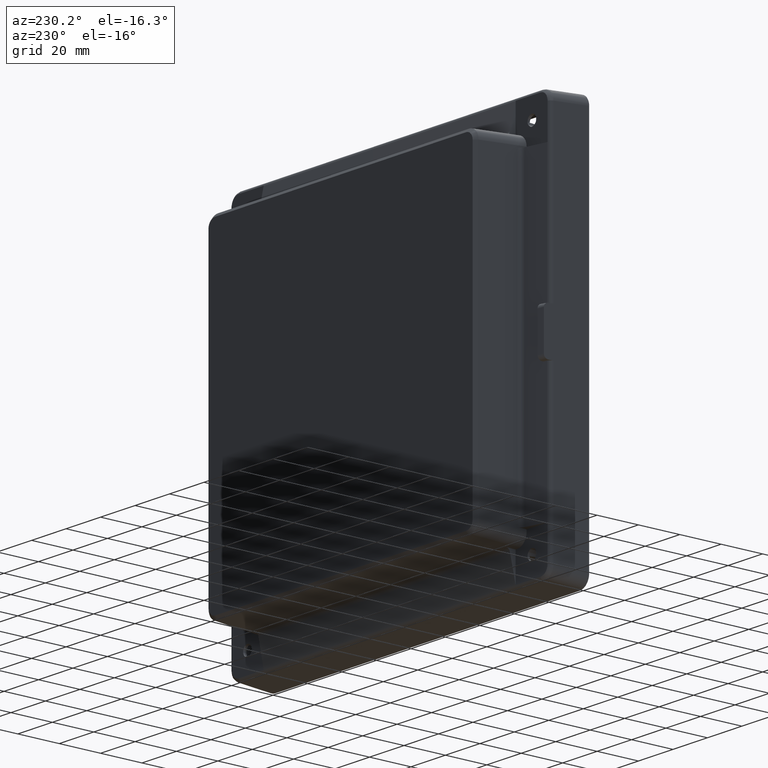
[diagram: clean part render]
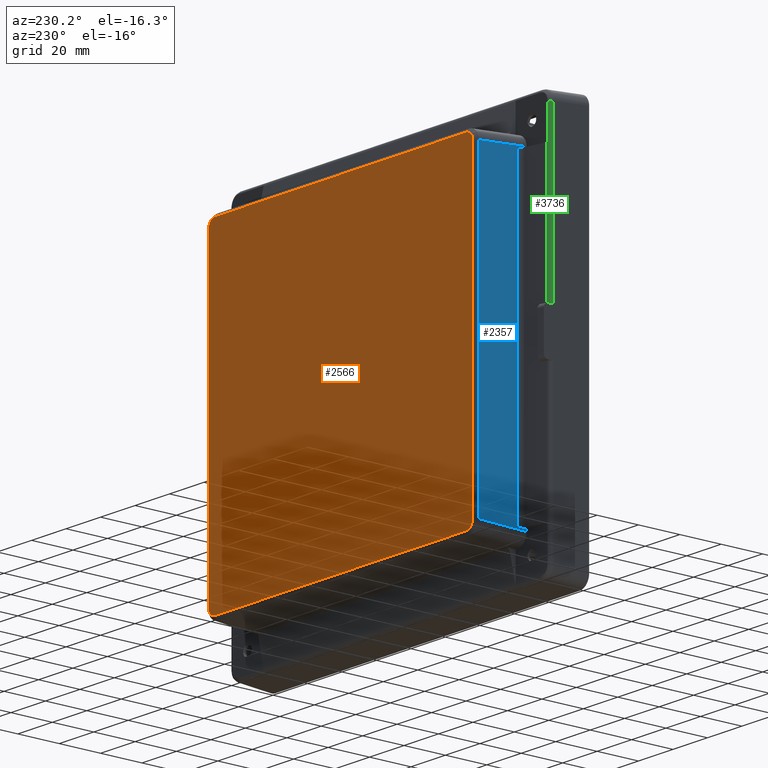
[diagram: same view with three faces highlighted in distinct colors, each labeled with its STEP entity id]
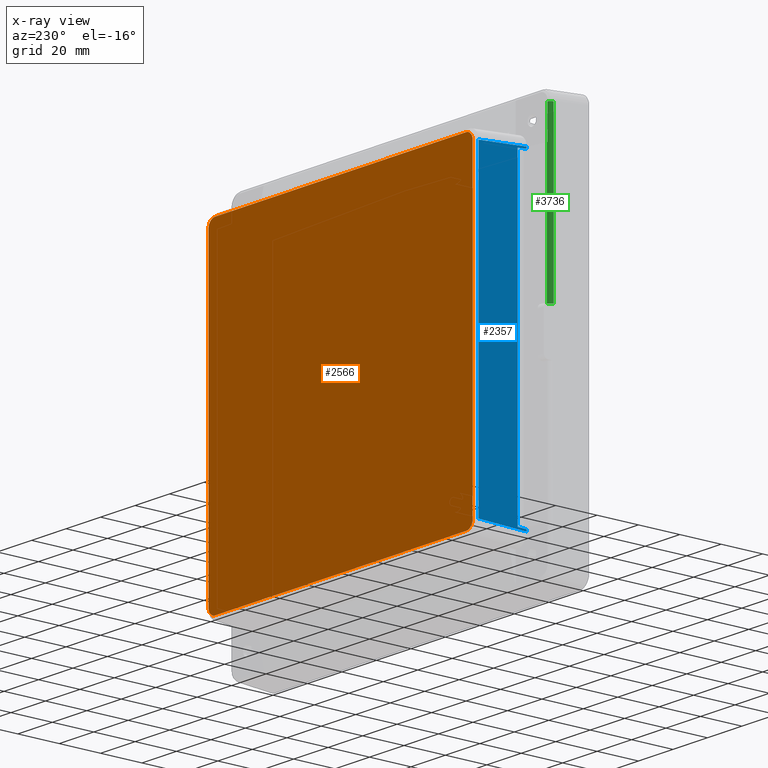
[diagram: x-ray of the same camera — body ghosted, the three highlighted faces saturated]
A machine part, auxiliary view with three faces highlighted in distinct colors.
The next image is the same camera in x-ray (body ghosted, the three faces saturated) — at least one of them is partly hidden behind the body in this view.
Their STEP definitions:

[orange] entity #2566 — the highlighted planar face has unit normal (0, 1, 0).
#1 = ORIENTED_EDGE ( 'NONE', *, *, #5078, .T. ) ;
#137 = CARTESIAN_POINT ( 'NONE',  ( -72.80417699759085800, 34.00000000000000000, 77.13300375027627400 ) ) ;
#355 = CARTESIAN_POINT ( 'NONE',  ( 76.53733778780858200, 34.00000000000000700, 74.29403919893644600 ) ) ;
#371 = CARTESIAN_POINT ( 'NONE',  ( 76.51245079106898600, 34.00000000000000700, -74.29038912306559400 ) ) ;
#379 = CARTESIAN_POINT ( 'NONE',  ( -73.30579338919908100, 34.00000000000000000, 77.13494238622121200 ) ) ;
#419 = VERTEX_POINT ( 'NONE', #3498 ) ;
#460 = B_SPLINE_CURVE_WITH_KNOTS ( 'NONE', 3,
 ( #1911, #6359, #5701, #5040, #4377, #3734, #3083, #2422, #1755, #1069, #379, #6207 ),
 .UNSPECIFIED., .F., .F.,
 ( 4, 2, 2, 2, 2, 4 ),
 ( 0.0000000000000000000, 0.1249999999999990600, 0.2499999999999981100, 0.4999999999999987800, 0.7499999999999994400, 1.000000000000000000 ),
 .UNSPECIFIED. ) ;
#656 = CARTESIAN_POINT ( 'NONE',  ( -74.03245852206094900, 34.00000000000000000, -76.93827085666104900 ) ) ;
#699 = CARTESIAN_POINT ( 'NONE',  ( -76.63300375027628800, 34.00000000000000000, 73.30417699759087200 ) ) ;
#910 = EDGE_CURVE ( 'NONE', #1118, #2521, #4220, .T. ) ;
#990 = ORIENTED_EDGE ( 'NONE', *, *, #2665, .T. ) ;
#1046 = CARTESIAN_POINT ( 'NONE',  ( 76.14304212226882400, 34.00000000000000000, 75.24378965478858600 ) ) ;
#1062 = CARTESIAN_POINT ( 'NONE',  ( 76.61005538948153100, 34.00000000000000000, -73.80214331330836300 ) ) ;
#1069 = CARTESIAN_POINT ( 'NONE',  ( -73.79403919895631200, 34.00000000000000700, 77.03733778780866700 ) ) ;
#1080 = ORIENTED_EDGE ( 'NONE', *, *, #1643, .T. ) ;
#1118 = VERTEX_POINT ( 'NONE', #1854 ) ;
#1321 = CARTESIAN_POINT ( 'NONE',  ( -73.79038912305672700, 34.00000000000000700, -77.01245079106892900 ) ) ;
#1388 = VERTEX_POINT ( 'NONE', #6297 ) ;
#1475 = DIRECTION ( 'NONE',  ( -1.723948796001796200E-016, 0.0000000000000000000, -1.000000000000000000 ) ) ;
#1481 = EDGE_CURVE ( 'NONE', #3728, #1388, #1718, .T. ) ;
#1583 = CARTESIAN_POINT ( 'NONE',  ( 72.80417699759088600, 34.00000000000000000, -77.13300375027627400 ) ) ;
#1630 = CARTESIAN_POINT ( 'NONE',  ( 72.80417699759091500, 34.00000000000000000, 77.13300375027628800 ) ) ;
#1643 = EDGE_CURVE ( 'NONE', #1388, #5713, #2820, .T. ) ;
#1651 = VECTOR ( 'NONE', #3019, 1000.000000000000000 ) ;
#1718 = B_SPLINE_CURVE_WITH_KNOTS ( 'NONE', 3,
 ( #6336, #5678, #5017, #4351, #3713, #3057, #2399, #1729, #1046, #355, #6184, #5517 ),
 .UNSPECIFIED., .F., .F.,
 ( 4, 2, 2, 2, 2, 4 ),
 ( 0.0000000000000000000, 0.1249999999999966700, 0.2499999999999933400, 0.4999999999999955600, 0.7499999999999977800, 1.000000000000000000 ),
 .UNSPECIFIED. ) ;
#1729 = CARTESIAN_POINT ( 'NONE',  ( 75.86757524036477200, 34.00000000000000000, 75.65694407211142900 ) ) ;
#1749 = CARTESIAN_POINT ( 'NONE',  ( 76.63397227614851200, 34.00000000000000000, -73.55478023977633500 ) ) ;
#1755 = CARTESIAN_POINT ( 'NONE',  ( -74.74378965476866200, 34.00000000000000000, 76.64304212226866800 ) ) ;
#1760 = VECTOR ( 'NONE', #4279, 1000.000000000000000 ) ;
#1768 = ORIENTED_EDGE ( 'NONE', *, *, #6004, .T. ) ;
#1782 = ORIENTED_EDGE ( 'NONE', *, *, #910, .T. ) ;
#1854 = CARTESIAN_POINT ( 'NONE',  ( -76.63300375027630200, 34.00000000000000000, -73.30417699759085800 ) ) ;
#1863 = ORIENTED_EDGE ( 'NONE', *, *, #4853, .T. ) ;
#1911 = CARTESIAN_POINT ( 'NONE',  ( -76.63300375027628800, 34.00000000000000000, 73.30417699759087200 ) ) ;
#2003 = CARTESIAN_POINT ( 'NONE',  ( -73.30214331329949600, 34.00000000000000000, -77.11005538948150200 ) ) ;
#2158 = CARTESIAN_POINT ( 'NONE',  ( 76.63300375027627400, 34.00000000000000000, -73.22567306322643800 ) ) ;
#2258 = CARTESIAN_POINT ( 'NONE',  ( 73.30579338921329200, 33.99999999999999300, -77.13494238622125500 ) ) ;
#2314 = ORIENTED_EDGE ( 'NONE', *, *, #2692, .T. ) ;
#2365 = CARTESIAN_POINT ( 'NONE',  ( 76.63300375027627400, 34.00000000000000000, -73.30417699759085800 ) ) ;
#2399 = CARTESIAN_POINT ( 'NONE',  ( 75.15682821574914400, 34.00000000000000000, 76.36745938400241600 ) ) ;
#2415 = CARTESIAN_POINT ( 'NONE',  ( 76.63300375027627400, 34.00000000000000000, -73.30417699759085800 ) ) ;
#2422 = CARTESIAN_POINT ( 'NONE',  ( -75.15694407213561600, 34.00000000000001400, 76.36757524034632600 ) ) ;
#2514 = CARTESIAN_POINT ( 'NONE',  ( -76.63300375027630200, 34.00000000000000000, -73.30417699759085800 ) ) ;
#2521 = VERTEX_POINT ( 'NONE', #699 ) ;
#2566 = ADVANCED_FACE ( 'NONE', ( #5197 ), #6375, .T. ) ;
#2665 = EDGE_CURVE ( 'NONE', #4398, #419, #5596, .T. ) ;
#2675 = CARTESIAN_POINT ( 'NONE',  ( -73.05478023977040900, 33.99999999999999300, -77.13397227614845500 ) ) ;
#2692 = EDGE_CURVE ( 'NONE', #419, #1118, #5755, .T. ) ;
#2820 = LINE ( 'NONE', #2158, #6191 ) ;
#2911 = DIRECTION ( 'NONE',  ( 8.619743980008980800E-017, 0.0000000000000000000, 1.000000000000000000 ) ) ;
#2916 = CARTESIAN_POINT ( 'NONE',  ( 73.79403919897053800, 34.00000000000000700, -77.03733778780875200 ) ) ;
#3019 = DIRECTION ( 'NONE',  ( 1.000000000000000000, 0.0000000000000000000, 0.0000000000000000000 ) ) ;
#3057 = CARTESIAN_POINT ( 'NONE',  ( 74.74182623646611000, 34.00000000000000000, 76.64402815178193900 ) ) ;
#3083 = CARTESIAN_POINT ( 'NONE',  ( -75.86745938397817200, 33.99999999999999300, 75.65682821576747600 ) ) ;
#3085 = VECTOR ( 'NONE', #2911, 1000.000000000000000 ) ;
#3182 = CARTESIAN_POINT ( 'NONE',  ( -76.63494238622111300, 33.99999999999999300, -73.80579338918504100 ) ) ;
#3330 = CARTESIAN_POINT ( 'NONE',  ( -72.80417699759085800, 34.00000000000000000, -77.13300375027627400 ) ) ;
#3498 = CARTESIAN_POINT ( 'NONE',  ( -72.80417699759085800, 34.00000000000000000, -77.13300375027627400 ) ) ;
#3573 = CARTESIAN_POINT ( 'NONE',  ( -76.63300375027628800, 34.00000000000000000, 73.22567306322636700 ) ) ;
#3576 = CARTESIAN_POINT ( 'NONE',  ( 74.74378965475450800, 34.00000000000000000, -76.64304212226859600 ) ) ;
#3676 = CARTESIAN_POINT ( 'NONE',  ( 72.72567306322642400, 34.00000000000000000, 77.13300375027628800 ) ) ;
#3713 = CARTESIAN_POINT ( 'NONE',  ( 74.03245852206080700, 34.00000000000000700, 76.93827085666703200 ) ) ;
#3728 = VERTEX_POINT ( 'NONE', #1630 ) ;
#3734 = CARTESIAN_POINT ( 'NONE',  ( -76.14402815177767500, 34.00000000000000700, 75.24182623646453300 ) ) ;
#3751 = DIRECTION ( 'NONE',  ( 0.0000000000000000000, -0.0000000000000000000, 1.000000000000000000 ) ) ;
#3828 = CARTESIAN_POINT ( 'NONE',  ( -76.53733778780858200, 34.00000000000000700, -74.29403919894228600 ) ) ;
#4220 = LINE ( 'NONE', #3573, #3085 ) ;
#4223 = CARTESIAN_POINT ( 'NONE',  ( 75.15694407216550100, 34.00000000000000000, -76.36757524032802300 ) ) ;
#4279 = DIRECTION ( 'NONE',  ( -1.000000000000000000, 0.0000000000000000000, 0.0000000000000000000 ) ) ;
#4314 = LINE ( 'NONE', #3676, #1651 ) ;
#4351 = CARTESIAN_POINT ( 'NONE',  ( 73.79038912307804300, 34.00000000000000700, 77.01245079106902800 ) ) ;
#4377 = CARTESIAN_POINT ( 'NONE',  ( -76.43827085666913500, 34.00000000000000700, 74.53245852206153200 ) ) ;
#4392 = DIRECTION ( 'NONE',  ( 0.0000000000000000000, 1.000000000000000000, 0.0000000000000000000 ) ) ;
#4398 = VERTEX_POINT ( 'NONE', #5028 ) ;
#4470 = CARTESIAN_POINT ( 'NONE',  ( -76.14304212226875300, 34.00000000000000000, -75.24378965478275900 ) ) ;
#4831 = ORIENTED_EDGE ( 'NONE', *, *, #1481, .T. ) ;
#4853 = EDGE_CURVE ( 'NONE', #2521, #5326, #460, .T. ) ;
#4875 = CARTESIAN_POINT ( 'NONE',  ( 75.86745938394832900, 34.00000000000000000, -75.65682821578582200 ) ) ;
#4934 = CARTESIAN_POINT ( 'NONE',  ( -72.72567306322643800, 34.00000000000000000, -77.13300375027627400 ) ) ;
#5017 = CARTESIAN_POINT ( 'NONE',  ( 73.30214331332079800, 34.00000000000000000, 77.11005538948157300 ) ) ;
#5028 = CARTESIAN_POINT ( 'NONE',  ( 72.80417699759088600, 34.00000000000000000, -77.13300375027627400 ) ) ;
#5040 = CARTESIAN_POINT ( 'NONE',  ( -76.51245079106901400, 34.00000000000000700, 74.29038912308689600 ) ) ;
#5054 = CARTESIAN_POINT ( 'NONE',  ( -80.00000000000000000, 34.00000000000000000, 80.50000000000000000 ) ) ;
#5078 = EDGE_CURVE ( 'NONE', #5713, #4398, #5960, .T. ) ;
#5133 = CARTESIAN_POINT ( 'NONE',  ( -75.86757524036880800, 34.00000000000000000, -75.65694407209579700 ) ) ;
#5197 = FACE_OUTER_BOUND ( 'NONE', #5622, .T. ) ;
#5326 = VERTEX_POINT ( 'NONE', #137 ) ;
#5354 = AXIS2_PLACEMENT_3D ( 'NONE', #5054, #4392, #3751 ) ;
#5517 = CARTESIAN_POINT ( 'NONE',  ( 76.63300375027633000, 34.00000000000000000, 73.30417699759087200 ) ) ;
#5536 = CARTESIAN_POINT ( 'NONE',  ( 76.14402815180612500, 34.00000000000000000, -75.24182623642443000 ) ) ;
#5596 = LINE ( 'NONE', #4934, #1760 ) ;
#5622 = EDGE_LOOP ( 'NONE', ( #990, #2314, #1782, #1863, #1768, #4831, #1080, #1 ) ) ;
#5678 = CARTESIAN_POINT ( 'NONE',  ( 73.05478023978462000, 34.00000000000000000, 77.13397227614856900 ) ) ;
#5701 = CARTESIAN_POINT ( 'NONE',  ( -76.61005538948155900, 33.99999999999999300, 73.80214331332968000 ) ) ;
#5713 = VERTEX_POINT ( 'NONE', #2365 ) ;
#5755 = B_SPLINE_CURVE_WITH_KNOTS ( 'NONE', 3,
 ( #3330, #2675, #2003, #1321, #656, #6452, #5792, #5133, #4470, #3828, #3182, #2514 ),
 .UNSPECIFIED., .F., .F.,
 ( 4, 2, 2, 2, 2, 4 ),
 ( 0.0000000000000000000, 0.1249999999999986700, 0.2499999999999973400, 0.4999999999999982200, 0.7499999999999991100, 1.000000000000000000 ),
 .UNSPECIFIED. ) ;
#5792 = CARTESIAN_POINT ( 'NONE',  ( -75.15682821574502300, 33.99999999999999300, -76.36745938401803400 ) ) ;
#5960 = B_SPLINE_CURVE_WITH_KNOTS ( 'NONE', 3,
 ( #2415, #1749, #1062, #371, #6200, #5536, #4875, #4223, #3576, #2916, #2258, #1583 ),
 .UNSPECIFIED., .F., .F.,
 ( 4, 2, 2, 2, 2, 4 ),
 ( 0.0000000000000000000, 0.1249999999999966700, 0.2499999999999933400, 0.4999999999999955600, 0.7499999999999977800, 1.000000000000000000 ),
 .UNSPECIFIED. ) ;
#6004 = EDGE_CURVE ( 'NONE', #5326, #3728, #4314, .T. ) ;
#6184 = CARTESIAN_POINT ( 'NONE',  ( 76.63494238622112700, 33.99999999999999300, 73.80579338917921500 ) ) ;
#6191 = VECTOR ( 'NONE', #1475, 1000.000000000000000 ) ;
#6200 = CARTESIAN_POINT ( 'NONE',  ( 76.43827085665493800, 34.00000000000000700, -74.53245852208156900 ) ) ;
#6207 = CARTESIAN_POINT ( 'NONE',  ( -72.80417699759085800, 34.00000000000000000, 77.13300375027627400 ) ) ;
#6297 = CARTESIAN_POINT ( 'NONE',  ( 76.63300375027633000, 34.00000000000000000, 73.30417699759087200 ) ) ;
#6336 = CARTESIAN_POINT ( 'NONE',  ( 72.80417699759091500, 34.00000000000000000, 77.13300375027628800 ) ) ;
#6359 = CARTESIAN_POINT ( 'NONE',  ( -76.63397227614854000, 34.00000000000000700, 73.55478023979057400 ) ) ;
#6375 = PLANE ( 'NONE',  #5354 ) ;
#6452 = CARTESIAN_POINT ( 'NONE',  ( -74.74182623646567000, 34.00000000000000000, -76.64402815179396100 ) ) ;

[blue] entity #2357 — the highlighted planar face has unit normal (-0.9986, 0.0523, 0).
#16 = VERTEX_POINT ( 'NONE', #3059 ) ;
#167 = VERTEX_POINT ( 'NONE', #1354 ) ;
#171 = CARTESIAN_POINT ( 'NONE',  ( -79.46213617619932300, 10.26305314132465800, -73.58475897172269200 ) ) ;
#218 = CARTESIAN_POINT ( 'NONE',  ( -79.24465219883353500, 14.41289464083261700, -73.36727499435687600 ) ) ;
#296 = CARTESIAN_POINT ( 'NONE',  ( -79.24465219883352100, 14.41289464083262600, 73.36727499435689000 ) ) ;
#310 = ORIENTED_EDGE ( 'NONE', *, *, #1697, .T. ) ;
#324 = DIRECTION ( 'NONE',  ( 8.716846312597123600E-017, 1.852822880811629900E-017, 1.000000000000000000 ) ) ;
#509 = CARTESIAN_POINT ( 'NONE',  ( -79.46213617619933700, 10.26305314132466200, 75.32409801448274300 ) ) ;
#638 = DIRECTION ( 'NONE',  ( -0.9986295347545739400, 0.05233595624294395300, 8.607930920459906700E-017 ) ) ;
#665 = VERTEX_POINT ( 'NONE', #296 ) ;
#897 = VECTOR ( 'NONE', #5091, 1000.000000000000000 ) ;
#1013 = CARTESIAN_POINT ( 'NONE',  ( -79.24465219883352100, 14.41289464083262000, 73.44759257769067100 ) ) ;
#1038 = ORIENTED_EDGE ( 'NONE', *, *, #6195, .T. ) ;
#1163 = VERTEX_POINT ( 'NONE', #171 ) ;
#1189 = LINE ( 'NONE', #509, #5117 ) ;
#1213 = CARTESIAN_POINT ( 'NONE',  ( -79.46213617619933700, 10.26305314132466900, 74.46967373504917000 ) ) ;
#1222 = VERTEX_POINT ( 'NONE', #1213 ) ;
#1309 = CARTESIAN_POINT ( 'NONE',  ( -80.00000000000001400, 0.0000000000000000000, -80.50000000000000000 ) ) ;
#1354 = CARTESIAN_POINT ( 'NONE',  ( -79.46213617619933700, 10.26305314132466900, 73.58475897172270700 ) ) ;
#1398 = VECTOR ( 'NONE', #4971, 1000.000000000000200 ) ;
#1693 = LINE ( 'NONE', #1013, #5969 ) ;
#1697 = EDGE_CURVE ( 'NONE', #2594, #16, #6291, .T. ) ;
#1783 = ORIENTED_EDGE ( 'NONE', *, *, #3923, .T. ) ;
#1815 = DIRECTION ( 'NONE',  ( -8.619743980008979600E-017, -6.461462339186889500E-034, -1.000000000000000000 ) ) ;
#1935 = DIRECTION ( 'NONE',  ( 0.05226442768871385900, 0.9972646886342372300, 0.05226442768871385900 ) ) ;
#1988 = PLANE ( 'NONE',  #2846 ) ;
#2186 = EDGE_LOOP ( 'NONE', ( #2769, #1038, #2871, #1783, #6293, #3445, #310, #4080 ) ) ;
#2357 = ADVANCED_FACE ( 'NONE', ( #4657 ), #1988, .T. ) ;
#2482 = CARTESIAN_POINT ( 'NONE',  ( -78.29663943874102500, 32.50205569786815800, -73.22567306322643800 ) ) ;
#2594 = VERTEX_POINT ( 'NONE', #5396 ) ;
#2606 = CARTESIAN_POINT ( 'NONE',  ( -81.20147521895933100, -22.92551287988146700, -75.32409801448270100 ) ) ;
#2639 = EDGE_CURVE ( 'NONE', #16, #1163, #6415, .T. ) ;
#2769 = ORIENTED_EDGE ( 'NONE', *, *, #5493, .T. ) ;
#2846 = AXIS2_PLACEMENT_3D ( 'NONE', #1309, #638, #6436 ) ;
#2871 = ORIENTED_EDGE ( 'NONE', *, *, #3474, .F. ) ;
#3059 = CARTESIAN_POINT ( 'NONE',  ( -79.46213617619935100, 10.26305314132466200, -74.46967373504917000 ) ) ;
#3148 = LINE ( 'NONE', #2482, #4584 ) ;
#3261 = LINE ( 'NONE', #2606, #6338 ) ;
#3445 = ORIENTED_EDGE ( 'NONE', *, *, #4514, .T. ) ;
#3474 = EDGE_CURVE ( 'NONE', #167, #665, #6138, .T. ) ;
#3923 = EDGE_CURVE ( 'NONE', #167, #1222, #1189, .T. ) ;
#4078 = EDGE_CURVE ( 'NONE', #1222, #6021, #5573, .T. ) ;
#4080 = ORIENTED_EDGE ( 'NONE', *, *, #2639, .T. ) ;
#4260 = DIRECTION ( 'NONE',  ( 0.05226442768871401900, 0.9972646886342372300, -0.05226442768871403200 ) ) ;
#4499 = VECTOR ( 'NONE', #4260, 1000.000000000000200 ) ;
#4514 = EDGE_CURVE ( 'NONE', #6021, #2594, #3148, .T. ) ;
#4584 = VECTOR ( 'NONE', #1815, 1000.000000000000000 ) ;
#4657 = FACE_OUTER_BOUND ( 'NONE', #2186, .T. ) ;
#4811 = DIRECTION ( 'NONE',  ( 0.05226442768871458100, 0.9972646886342372300, -0.05226442768871458100 ) ) ;
#4915 = CARTESIAN_POINT ( 'NONE',  ( -79.57522021317406300, 8.105281174609720200, 74.58275777202392500 ) ) ;
#4971 = DIRECTION ( 'NONE',  ( -0.05226442768871403200, -0.9972646886342372300, -0.05226442768871403900 ) ) ;
#5083 = VERTEX_POINT ( 'NONE', #218 ) ;
#5091 = DIRECTION ( 'NONE',  ( 3.136525320392762400E-014, 0.0000000000000000000, 1.000000000000000000 ) ) ;
#5117 = VECTOR ( 'NONE', #6315, 1000.000000000000000 ) ;
#5358 = VECTOR ( 'NONE', #4811, 1000.000000000000100 ) ;
#5396 = CARTESIAN_POINT ( 'NONE',  ( -78.29663943874102500, 32.50205569786815100, -73.30417699759085800 ) ) ;
#5406 = CARTESIAN_POINT ( 'NONE',  ( -78.29663943874099600, 32.50205569786815100, 73.30417699759084400 ) ) ;
#5462 = CARTESIAN_POINT ( 'NONE',  ( -81.20147521895937400, -22.92551287988146300, 75.32409801448274300 ) ) ;
#5493 = EDGE_CURVE ( 'NONE', #1163, #5083, #3261, .T. ) ;
#5573 = LINE ( 'NONE', #4915, #4499 ) ;
#5633 = CARTESIAN_POINT ( 'NONE',  ( -80.01500304783631600, -0.2862752064970361400, -75.02254060668615000 ) ) ;
#5751 = CARTESIAN_POINT ( 'NONE',  ( -79.46213617619938000, 10.26305314132466200, -75.32409801448275700 ) ) ;
#5969 = VECTOR ( 'NONE', #324, 1000.000000000000000 ) ;
#6021 = VERTEX_POINT ( 'NONE', #5406 ) ;
#6138 = LINE ( 'NONE', #5462, #5358 ) ;
#6195 = EDGE_CURVE ( 'NONE', #5083, #665, #1693, .T. ) ;
#6291 = LINE ( 'NONE', #5633, #1398 ) ;
#6293 = ORIENTED_EDGE ( 'NONE', *, *, #4078, .T. ) ;
#6315 = DIRECTION ( 'NONE',  ( -0.0000000000000000000, 0.0000000000000000000, 1.000000000000000000 ) ) ;
#6338 = VECTOR ( 'NONE', #1935, 1000.000000000000200 ) ;
#6415 = LINE ( 'NONE', #5751, #897 ) ;
#6436 = DIRECTION ( 'NONE',  ( -0.05233595624294395300, -0.9986295347545739400, 0.0000000000000000000 ) ) ;

[green] entity #3736 — the highlighted cylindrical surface (edge-blend (fillet) strip) has radius 2 mm, axis along (0, 0, -1).
#256 = FACE_OUTER_BOUND ( 'NONE', #3116, .T. ) ;
#266 = DIRECTION ( 'NONE',  ( -1.000000000000000000, 0.0000000000000000000, 0.0000000000000000000 ) ) ;
#469 = CARTESIAN_POINT ( 'NONE',  ( -90.95898072099431900, 8.362777301493993700, 11.00000000000001100 ) ) ;
#551 = VERTEX_POINT ( 'NONE', #1419 ) ;
#603 = EDGE_CURVE ( 'NONE', #2419, #4606, #5130, .T. ) ;
#678 = ORIENTED_EDGE ( 'NONE', *, *, #3543, .F. ) ;
#755 = DIRECTION ( 'NONE',  ( 0.0000000000000000000, 0.0000000000000000000, -1.000000000000000000 ) ) ;
#769 = CARTESIAN_POINT ( 'NONE',  ( -91.58264067045061600, 10.26305314132466200, 89.31657028627455500 ) ) ;
#779 = CYLINDRICAL_SURFACE ( 'NONE', #6241, 2.000000000000001800 ) ;
#860 = ORIENTED_EDGE ( 'NONE', *, *, #3485, .F. ) ;
#919 = ORIENTED_EDGE ( 'NONE', *, *, #3642, .T. ) ;
#947 = DIRECTION ( 'NONE',  ( 0.0000000000000000000, 0.0000000000000000000, -1.000000000000000000 ) ) ;
#992 = CARTESIAN_POINT ( 'NONE',  ( -90.95898072099431900, 8.362777301493993700, 89.31657028627455500 ) ) ;
#1034 = DIRECTION ( 'NONE',  ( -0.0000000000000000000, 0.0000000000000000000, -1.000000000000000000 ) ) ;
#1419 = CARTESIAN_POINT ( 'NONE',  ( -92.95623979050346000, 8.467449213979881200, 11.00000000000001100 ) ) ;
#1423 = CARTESIAN_POINT ( 'NONE',  ( -91.58264067045061600, 10.26305314132466200, 95.50000000000002800 ) ) ;
#1590 = VECTOR ( 'NONE', #1034, 1000.000000000000000 ) ;
#1605 = ORIENTED_EDGE ( 'NONE', *, *, #2405, .T. ) ;
#1625 = CARTESIAN_POINT ( 'NONE',  ( -91.58264067045061600, 10.26305314132466200, 73.58475897172270700 ) ) ;
#1717 = CARTESIAN_POINT ( 'NONE',  ( -92.95623979050346000, 8.467449213979881200, -89.48345976601945000 ) ) ;
#2111 = LINE ( 'NONE', #1423, #5240 ) ;
#2297 = CARTESIAN_POINT ( 'NONE',  ( -91.51440114518401000, 10.28544897354368200, 73.58358525589092400 ) ) ;
#2352 = VECTOR ( 'NONE', #5164, 1000.000000000000000 ) ;
#2389 = LINE ( 'NONE', #1717, #1590 ) ;
#2405 = EDGE_CURVE ( 'NONE', #5924, #551, #3791, .T. ) ;
#2419 = VERTEX_POINT ( 'NONE', #3663 ) ;
#2603 = VERTEX_POINT ( 'NONE', #769 ) ;
#2660 = ORIENTED_EDGE ( 'NONE', *, *, #603, .F. ) ;
#2818 = ORIENTED_EDGE ( 'NONE', *, *, #3109, .F. ) ;
#2955 = CARTESIAN_POINT ( 'NONE',  ( -91.44505530144600400, 10.30414014968804700, 73.58260569285700100 ) ) ;
#3109 = EDGE_CURVE ( 'NONE', #5924, #2419, #6488, .T. ) ;
#3116 = EDGE_LOOP ( 'NONE', ( #2818, #1605, #678, #860, #919, #2660 ) ) ;
#3485 = EDGE_CURVE ( 'NONE', #2603, #4505, #5812, .T. ) ;
#3506 = DIRECTION ( 'NONE',  ( 1.000000000000000000, 0.0000000000000000000, 0.0000000000000000000 ) ) ;
#3543 = EDGE_CURVE ( 'NONE', #4505, #551, #2389, .T. ) ;
#3615 = CARTESIAN_POINT ( 'NONE',  ( -91.37480410262982400, 10.31907250296160500, 73.58182312138247000 ) ) ;
#3620 = CARTESIAN_POINT ( 'NONE',  ( -90.95898072099431900, 8.362777301493993700, 95.50000000000002800 ) ) ;
#3642 = EDGE_CURVE ( 'NONE', #2603, #4606, #2111, .T. ) ;
#3663 = CARTESIAN_POINT ( 'NONE',  ( -91.37480410262982400, 10.31907250296160500, 73.58182312138247000 ) ) ;
#3736 = ADVANCED_FACE ( 'NONE', ( #256 ), #779, .T. ) ;
#3791 = CIRCLE ( 'NONE', #4985, 2.000000000000001800 ) ;
#4164 = DIRECTION ( 'NONE',  ( 0.0000000000000000000, 0.0000000000000000000, 1.000000000000000000 ) ) ;
#4246 = CARTESIAN_POINT ( 'NONE',  ( -91.37480410262982400, 10.31907250296160500, 11.00000000000001100 ) ) ;
#4505 = VERTEX_POINT ( 'NONE', #5758 ) ;
#4606 = VERTEX_POINT ( 'NONE', #5020 ) ;
#4985 = AXIS2_PLACEMENT_3D ( 'NONE', #469, #6283, #5623 ) ;
#5020 = CARTESIAN_POINT ( 'NONE',  ( -91.58264067045061600, 10.26305314132466200, 73.58475897172270700 ) ) ;
#5130 =( BOUNDED_CURVE ( )  B_SPLINE_CURVE ( 3, ( #3615, #2955, #2297, #1625 ),
 .UNSPECIFIED., .F., .F. ) 
 B_SPLINE_CURVE_WITH_KNOTS ( ( 4, 4 ),
 ( 0.2094395102393153100, 0.3171184348651902000 ),
 .UNSPECIFIED. ) 
 CURVE ( )  GEOMETRIC_REPRESENTATION_ITEM ( )  RATIONAL_B_SPLINE_CURVE ( ( 1.000000000000000000, 0.9990340041431338100, 0.9990340041431338100, 1.000000000000000000 ) ) 
 REPRESENTATION_ITEM ( '' )  );
#5164 = DIRECTION ( 'NONE',  ( -0.0000000000000000000, -0.0000000000000000000, 1.000000000000000000 ) ) ;
#5200 = AXIS2_PLACEMENT_3D ( 'NONE', #992, #4164, #3506 ) ;
#5240 = VECTOR ( 'NONE', #755, 1000.000000000000000 ) ;
#5623 = DIRECTION ( 'NONE',  ( -1.000000000000000000, 8.673617379884027600E-016, 0.0000000000000000000 ) ) ;
#5758 = CARTESIAN_POINT ( 'NONE',  ( -92.95623979050346000, 8.467449213979879400, 89.31657028627455500 ) ) ;
#5812 = CIRCLE ( 'NONE', #5200, 2.000000000000001800 ) ;
#5827 = CARTESIAN_POINT ( 'NONE',  ( -91.37480410262982400, 10.31907250296160500, 89.48345976601945000 ) ) ;
#5924 = VERTEX_POINT ( 'NONE', #4246 ) ;
#6241 = AXIS2_PLACEMENT_3D ( 'NONE', #3620, #947, #266 ) ;
#6283 = DIRECTION ( 'NONE',  ( -0.0000000000000000000, -0.0000000000000000000, 1.000000000000000000 ) ) ;
#6488 = LINE ( 'NONE', #5827, #2352 ) ;